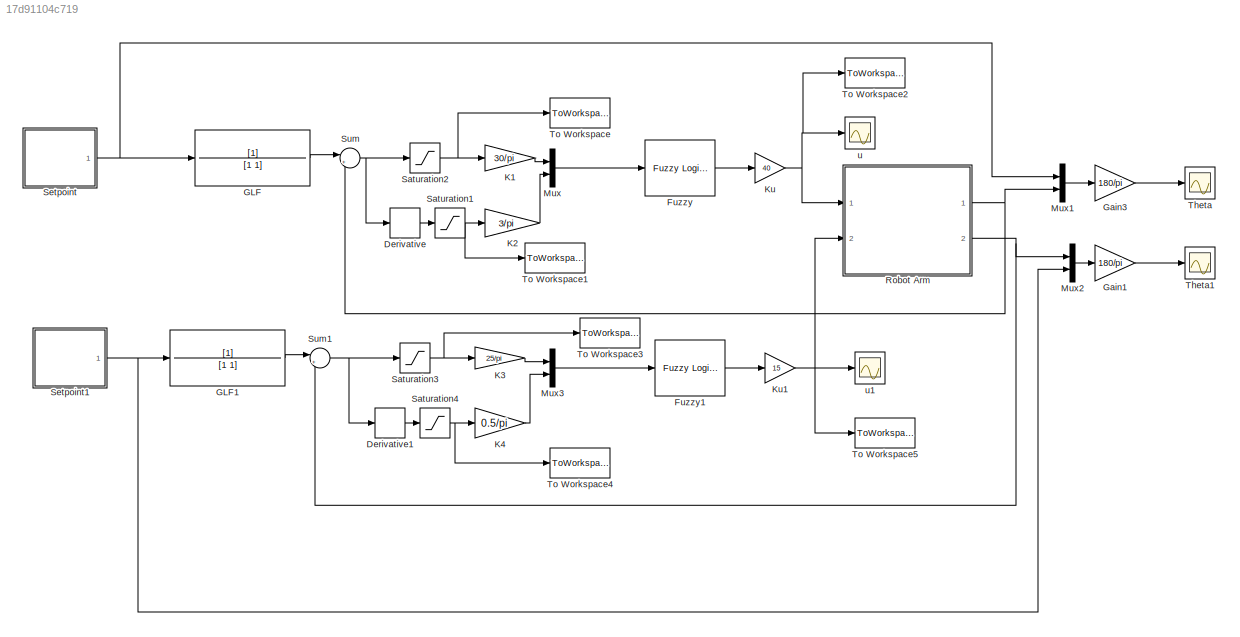
MODEL slx_17d91104c719
KIND model
CONFIG AbsTol = auto
CONFIG EnableMultiTasking = off
CONFIG FixedStep = 0.01
CONFIG MaxStep = auto
CONFIG MinStep = auto
CONFIG RelTol = 1e-3
CONFIG SampleTimeConstraint = Unconstrained
CONFIG Solver = FixedStepAuto
CONFIG SolverName = FixedStepAuto
CONFIG StartTime = 0.0
CONFIG StopTime = 40
BLOCK [Derivative] Derivative
BLOCK [Derivative] Derivative1
BLOCK [Reference] Fuzzy  REF=fuzblock/Fuzzy Logic   (lib defined in mdl_858b3b3e7478)
Controller
  Ports = [1, 1]
  SourceBlock = fuzblock/Fuzzy Logic \nController
  SourceProductBaseCode = FL
  SourceProductName = Fuzzy Logic Toolbox
  SourceType = Fuzzy Inference System
BLOCK [Reference] Fuzzy1  REF=fuzblock/Fuzzy Logic   (lib defined in mdl_858b3b3e7478)
Controller
  Ports = [1, 1]
  SourceBlock = fuzblock/Fuzzy Logic \nController
  SourceProductBaseCode = FL
  SourceProductName = Fuzzy Logic Toolbox
  SourceType = Fuzzy Inference System
BLOCK [TransferFcn] GLF
BLOCK [TransferFcn] GLF1
BLOCK [Gain] Gain1
  Gain = 180/pi
  OutDataTypeStr = Inherit: Inherit via internal rule
  ParamDataTypeStr = Inherit: Inherit via internal rule
  SaturateOnIntegerOverflow = off
BLOCK [Gain] Gain3
  Gain = 180/pi
  OutDataTypeStr = Inherit: Inherit via internal rule
  ParamDataTypeStr = Inherit: Inherit via internal rule
  SaturateOnIntegerOverflow = off
BLOCK [Gain] K1
  Gain = 30/pi
  OutDataTypeStr = Inherit: Inherit via internal rule
  ParamDataTypeStr = Inherit: Inherit via internal rule
  SaturateOnIntegerOverflow = off
BLOCK [Gain] K2
  Gain = 3/pi
  OutDataTypeStr = Inherit: Inherit via internal rule
  ParamDataTypeStr = Inherit: Inherit via internal rule
  SaturateOnIntegerOverflow = off
BLOCK [Gain] K3
  Gain = 25/pi
  OutDataTypeStr = Inherit: Inherit via internal rule
  ParamDataTypeStr = Inherit: Inherit via internal rule
  SaturateOnIntegerOverflow = off
BLOCK [Gain] K4
  Gain = 0.5/pi
  OutDataTypeStr = Inherit: Inherit via internal rule
  ParamDataTypeStr = Inherit: Inherit via internal rule
  SaturateOnIntegerOverflow = off
BLOCK [Gain] Ku
  Gain = 40
  OutDataTypeStr = Inherit: Inherit via internal rule
  ParamDataTypeStr = Inherit: Inherit via internal rule
  SaturateOnIntegerOverflow = off
BLOCK [Gain] Ku1
  Gain = 15
  OutDataTypeStr = Inherit: Inherit via internal rule
  ParamDataTypeStr = Inherit: Inherit via internal rule
  SaturateOnIntegerOverflow = off
BLOCK [Mux] Mux
  DisplayOption = bar
  Inputs = 2
  Ports = [2, 1]
BLOCK [Mux] Mux1
  DisplayOption = bar
  Inputs = 2
  Ports = [2, 1]
BLOCK [Mux] Mux2
  DisplayOption = bar
  Inputs = 2
  Ports = [2, 1]
BLOCK [Mux] Mux3
  DisplayOption = bar
  Inputs = 2
  Ports = [2, 1]
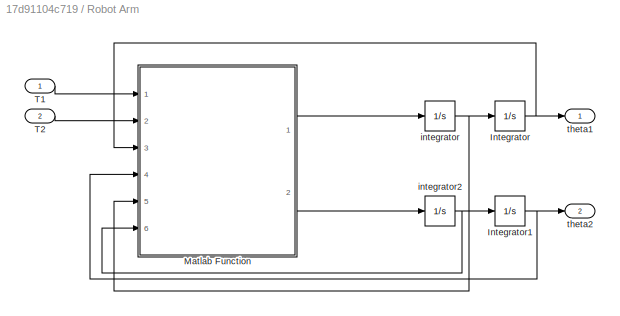
BLOCK [SubSystem] Robot Arm
  Ports = [2, 2]
  RequestExecContextInheritance = off
  Variant = off
BLOCK [Integrator] Robot Arm/Integrator
  Ports = [1, 1]
BLOCK [Integrator] Robot Arm/Integrator1
  Ports = [1, 1]
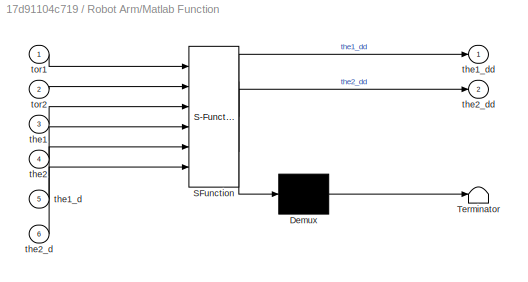
BLOCK [SubSystem] Robot Arm/Matlab Function
  ErrorFcn = Stateflow.Translate.translate
  PermitHierarchicalResolution = ExplicitOnly
  Ports = [6, 2]
  RequestExecContextInheritance = off
  SFBlockType = MATLAB Function
  TreatAsAtomicUnit = on
  Variant = off
BLOCK [Demux] Robot Arm/Matlab Function/ Demux 
  Outputs = 1
  Ports = [1, 1]
BLOCK [S-Function] Robot Arm/Matlab Function/ SFunction 
  EnableBusSupport = on
  FunctionName = sf_sfun
  PortCounts = [6 3]
  Ports = [6, 3]
  SFcnIsStateOwnerBlock = off
  SFunctionDeploymentMode = off
  Tag = Stateflow S-Function BO_DK_PI_MO_HE_ROBOT_2_DOF1_2017 1
BLOCK [Terminator] Robot Arm/Matlab Function/ Terminator 
BLOCK [Inport] Robot Arm/Matlab Function/the1
  IconDisplay = Port number
  Port = 3
BLOCK [Inport] Robot Arm/Matlab Function/the1_d
  IconDisplay = Port number
  Port = 5
BLOCK [Outport] Robot Arm/Matlab Function/the1_dd
  IconDisplay = Port number
BLOCK [Inport] Robot Arm/Matlab Function/the2
  IconDisplay = Port number
  Port = 4
BLOCK [Inport] Robot Arm/Matlab Function/the2_d
  IconDisplay = Port number
  Port = 6
BLOCK [Outport] Robot Arm/Matlab Function/the2_dd
  IconDisplay = Port number
  Port = 2
BLOCK [Inport] Robot Arm/Matlab Function/tor1
  IconDisplay = Port number
BLOCK [Inport] Robot Arm/Matlab Function/tor2
  IconDisplay = Port number
  Port = 2
BLOCK [Inport] Robot Arm/T1
  IconDisplay = Port number
BLOCK [Inport] Robot Arm/T2
  IconDisplay = Port number
  Port = 2
BLOCK [Integrator] Robot Arm/integrator
  Ports = [1, 1]
BLOCK [Integrator] Robot Arm/integrator2
  Ports = [1, 1]
BLOCK [Outport] Robot Arm/theta1
  IconDisplay = Port number
BLOCK [Outport] Robot Arm/theta2
  IconDisplay = Port number
  Port = 2
BLOCK [Saturate] Saturation1
  InputPortMap = u0
  LowerLimit = -1
  Ports = [1, 1]
  UpperLimit = 1
BLOCK [Saturate] Saturation2
  InputPortMap = u0
  LowerLimit = -1
  Ports = [1, 1]
  UpperLimit = 1
BLOCK [Saturate] Saturation3
  InputPortMap = u0
  LowerLimit = -1
  Ports = [1, 1]
  UpperLimit = 1
BLOCK [Saturate] Saturation4
  InputPortMap = u0
  LowerLimit = -1
  Ports = [1, 1]
  UpperLimit = 1
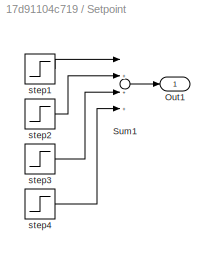
BLOCK [SubSystem] Setpoint
  Ports = [0, 1]
  RequestExecContextInheritance = off
  Variant = off
BLOCK [Outport] Setpoint/Out1
  IconDisplay = Port number
BLOCK [Sum] Setpoint/Sum1
  InputSameDT = off
  Inputs = |++++
  OutDataTypeStr = Inherit: Inherit via internal rule
  Ports = [4, 1]
  SaturateOnIntegerOverflow = off
BLOCK [Step] Setpoint/step1
  After = -pi/4
  SampleTime = 0
  Time = 0
BLOCK [Step] Setpoint/step2
  After = pi/4
  SampleTime = 0
  Time = 10
BLOCK [Step] Setpoint/step3
  After = -pi/6
  SampleTime = 0
  Time = 20
BLOCK [Step] Setpoint/step4
  After = pi/3
  SampleTime = 0
  Time = 30
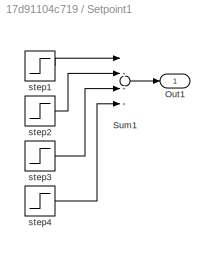
BLOCK [SubSystem] Setpoint1
  Ports = [0, 1]
  RequestExecContextInheritance = off
  Variant = off
BLOCK [Outport] Setpoint1/Out1
  IconDisplay = Port number
BLOCK [Sum] Setpoint1/Sum1
  InputSameDT = off
  Inputs = |++++
  OutDataTypeStr = Inherit: Inherit via internal rule
  Ports = [4, 1]
  SaturateOnIntegerOverflow = off
BLOCK [Step] Setpoint1/step1
  After = pi/6
  SampleTime = 0
  Time = 0
BLOCK [Step] Setpoint1/step2
  After = -pi/3
  SampleTime = 0
  Time = 10
BLOCK [Step] Setpoint1/step3
  After = pi/6
  SampleTime = 0
  Time = 20
BLOCK [Step] Setpoint1/step4
  After = -pi/4
  SampleTime = 0
  Time = 30
BLOCK [Sum] Sum
  IconShape = round
  InputSameDT = off
  Inputs = |+-
  OutDataTypeStr = Inherit: Inherit via internal rule
  Ports = [2, 1]
  SaturateOnIntegerOverflow = off
BLOCK [Sum] Sum1
  IconShape = round
  InputSameDT = off
  Inputs = |+-
  OutDataTypeStr = Inherit: Inherit via internal rule
  Ports = [2, 1]
  SaturateOnIntegerOverflow = off
BLOCK [Scope] Theta
  NumInputPorts = 1
  Ports = [1]
  ScopeSpecificationString = Simulink.scopes.TimeScopeBlockCfg('CurrentConfiguration', extmgr.ConfigurationSet(extmgr.Configuration('Core','General UI',true,'FigureColor',[1 1 1]),extmgr.Configuration('Core','Source UI',true),extmgr.Configuration('Sources','WiredSimulink',true),extmgr.Configuration('Visuals','Time Domain',true,'SerializedDisplays',{struct('MinYLimReal','-80.08443','MaxYLimReal','88.18365','YLabelReal','','Min...<+1647ch>
BLOCK [Scope] Theta1
  NumInputPorts = 1
  Ports = [1]
  ScopeSpecificationString = Simulink.scopes.TimeScopeBlockCfg('CurrentConfiguration', extmgr.ConfigurationSet(extmgr.Configuration('Core','General UI',true,'FigureColor',[1 1 1]),extmgr.Configuration('Core','Source UI',true),extmgr.Configuration('Sources','WiredSimulink',true,'DataLoggingVariableName','ScopeData1'),extmgr.Configuration('Visuals','Time Domain',true,'SerializedDisplays',{struct('MinYLimReal','-90','MaxYLimReal...<+1646ch>
BLOCK [ToWorkspace] To Workspace
  FixptAsFi = on
  MaxDataPoints = inf
  Ports = [1]
  SampleTime = -1
  Save2DSignal = 3-D array (concatenate along third dimension)
  VariableName = e
BLOCK [ToWorkspace] To Workspace1
  FixptAsFi = on
  MaxDataPoints = inf
  Ports = [1]
  SampleTime = -1
  Save2DSignal = 3-D array (concatenate along third dimension)
  VariableName = de
BLOCK [ToWorkspace] To Workspace2
  FixptAsFi = on
  MaxDataPoints = inf
  Ports = [1]
  SampleTime = -1
  Save2DSignal = 3-D array (concatenate along third dimension)
  VariableName = u
BLOCK [ToWorkspace] To Workspace3
  FixptAsFi = on
  MaxDataPoints = inf
  Ports = [1]
  SampleTime = -1
  Save2DSignal = 3-D array (concatenate along third dimension)
  VariableName = e1
BLOCK [ToWorkspace] To Workspace4
  FixptAsFi = on
  MaxDataPoints = inf
  Ports = [1]
  SampleTime = -1
  Save2DSignal = 3-D array (concatenate along third dimension)
  VariableName = de1
BLOCK [ToWorkspace] To Workspace5
  FixptAsFi = on
  MaxDataPoints = inf
  Ports = [1]
  SampleTime = -1
  Save2DSignal = 3-D array (concatenate along third dimension)
  VariableName = u1
BLOCK [Scope] u
  NumInputPorts = 1
  Ports = [1]
  ScopeSpecificationString = Simulink.scopes.TimeScopeBlockCfg('CurrentConfiguration', extmgr.ConfigurationSet(extmgr.Configuration('Core','General UI',true,'FigureColor',[1 1 1]),extmgr.Configuration('Core','Source UI',true),extmgr.Configuration('Sources','WiredSimulink',true,'DataLoggingVariableName','ScopeData1'),extmgr.Configuration('Visuals','Time Domain',true,'SerializedDisplays',{struct('MinYLimReal','-2.64326','MaxYLi...<+1543ch>
BLOCK [Scope] u1
  NumInputPorts = 1
  Ports = [1]
  ScopeSpecificationString = Simulink.scopes.TimeScopeBlockCfg('CurrentConfiguration', extmgr.ConfigurationSet(extmgr.Configuration('Core','General UI',true,'FigureColor',[1 1 1]),extmgr.Configuration('Core','Source UI',true),extmgr.Configuration('Sources','WiredSimulink',true,'DataLoggingVariableName','ScopeData2'),extmgr.Configuration('Visuals','Time Domain',true,'SerializedDisplays',{struct('MinYLimReal','-1.2848','MaxYLim...<+1536ch>
LINE Derivative1:1 -> Saturation4:1
LINE Derivative:1 -> Saturation1:1
LINE Fuzzy1:1 -> Ku1:1
LINE Fuzzy:1 -> Ku:1
LINE GLF1:1 -> Sum1:1
LINE GLF:1 -> Sum:1
LINE Gain1:1 -> Theta1:1
LINE Gain3:1 -> Theta:1
LINE K1:1 -> Mux:1
LINE K2:1 -> Mux:2
LINE K3:1 -> Mux3:1
LINE K4:1 -> Mux3:2
NET Ku1:1 -> Robot Arm:2, To Workspace5:1, u1:1
NET Ku:1 -> Robot Arm:1, To Workspace2:1, u:1
LINE Mux1:1 -> Gain3:1
LINE Mux2:1 -> Gain1:1
LINE Mux3:1 -> Fuzzy1:1
LINE Mux:1 -> Fuzzy:1
NET Robot Arm/Integrator1:1 -> Robot Arm/Matlab Function:4, Robot Arm/theta2:1
NET Robot Arm/Integrator:1 -> Robot Arm/Matlab Function:3, Robot Arm/theta1:1
LINE Robot Arm/Matlab Function:1 -> Robot Arm/integrator:1
LINE Robot Arm/Matlab Function:2 -> Robot Arm/integrator2:1
LINE Robot Arm/T1:1 -> Robot Arm/Matlab Function:1
LINE Robot Arm/T2:1 -> Robot Arm/Matlab Function:2
NET Robot Arm/integrator2:1 -> Robot Arm/Integrator1:1, Robot Arm/Matlab Function:6
NET Robot Arm/integrator:1 -> Robot Arm/Integrator:1, Robot Arm/Matlab Function:5
NET Robot Arm:1 -> Mux1:2, Sum:2
NET Robot Arm:2 -> Mux2:1, Sum1:2
NET Saturation1:1 -> K2:1, To Workspace1:1
NET Saturation2:1 -> K1:1, To Workspace:1
NET Saturation3:1 -> K3:1, To Workspace3:1
NET Saturation4:1 -> K4:1, To Workspace4:1
LINE Setpoint/Sum1:1 -> Setpoint/Out1:1
LINE Setpoint/step1:1 -> Setpoint/Sum1:1
LINE Setpoint/step2:1 -> Setpoint/Sum1:2
LINE Setpoint/step3:1 -> Setpoint/Sum1:3
LINE Setpoint/step4:1 -> Setpoint/Sum1:4
LINE Setpoint1/Sum1:1 -> Setpoint1/Out1:1
LINE Setpoint1/step1:1 -> Setpoint1/Sum1:1
LINE Setpoint1/step2:1 -> Setpoint1/Sum1:2
LINE Setpoint1/step3:1 -> Setpoint1/Sum1:3
LINE Setpoint1/step4:1 -> Setpoint1/Sum1:4
NET Setpoint1:1 -> GLF1:1, Mux2:2
NET Setpoint:1 -> GLF:1, Mux1:1
NET Sum1:1 -> Derivative1:1, Saturation3:1
NET Sum:1 -> Derivative:1, Saturation2:1
note: NET lines group one-source signal fan-out (src -> all destinations, sorted); 1:1 wires keep LINE
CHART Robot Arm/Matlab Function states=1 transitions=1
  STATE_LABEL 'eML_blk_kernel()'
  STATE_LABEL 'SCRIPT:\nfunction [the1_dd,the2_dd] = PTVP(tor1,tor2,the1,the2,the1_d,the2_d)\nJ1=0.05;\nJ2=0.05;\nm1=1;\nm2=1;\nm3=0;%Khoi luong cua hai khop\nl1=1;\nl2=1;\nlc1=0.4;\nlc2=0.4;\ng=9.81;\nH11=J1+J2+m1*(lc1^2)+m2*((l1^2)+(lc2^2)+2*l1*lc2*cos(the2))+m3*(l1*l1+l2*l2+2*l1*l2*cos(the2));\nH22=J2+m2*lc2*lc2+m3*l2*l2;\nH12=J2+m2*(lc2*lc2+l1*lc2*cos(the2))+m3*(l2*l2+2*l1*l2*cos(the2));\nH21=H12;\nH=[H11 H12;\n   H21 H22];\n...<+324ch>'
